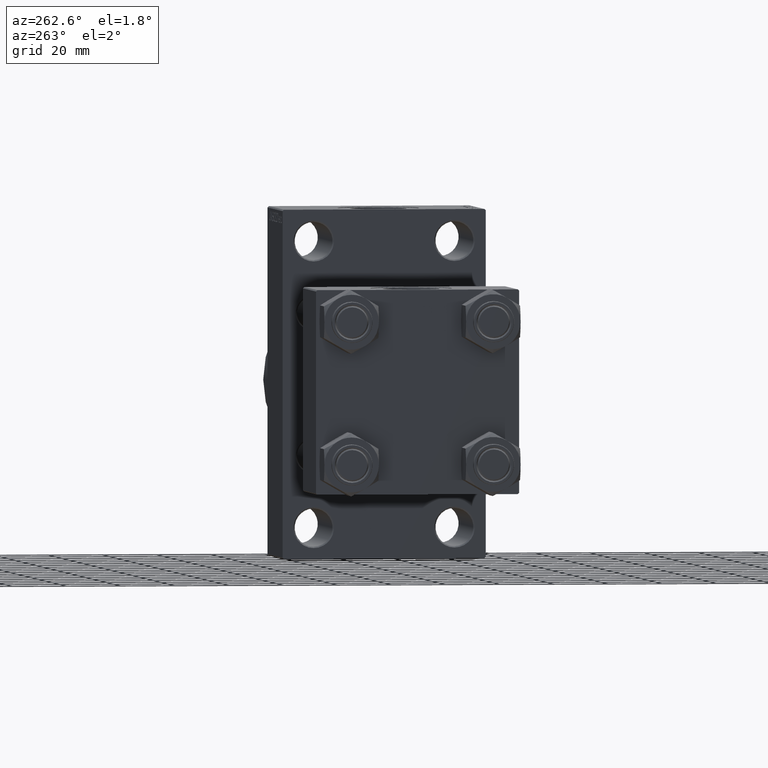
[diagram: clean part render]
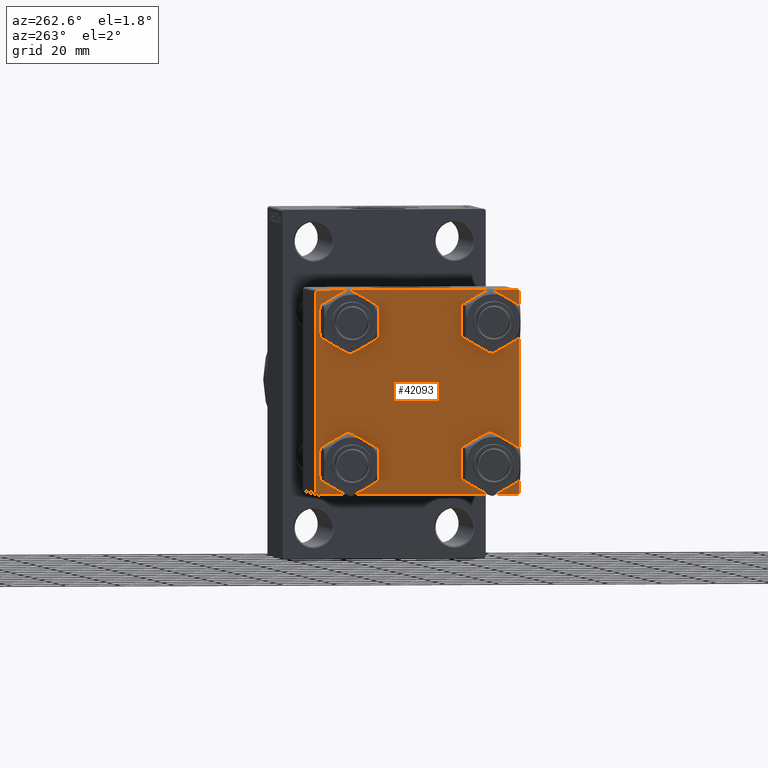
[diagram: same view with one face highlighted and labeled with its STEP entity id]
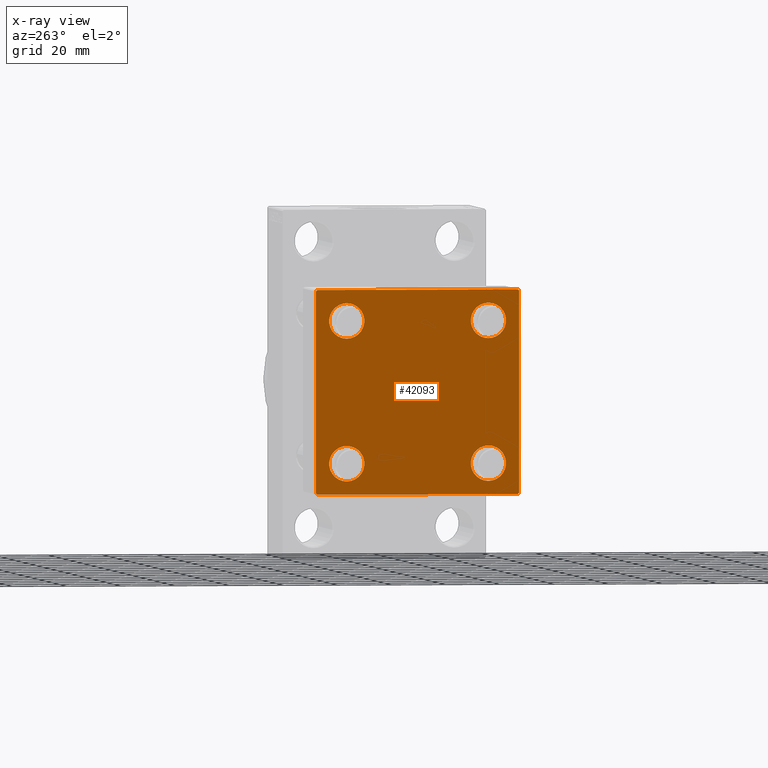
[diagram: x-ray of the same camera — body ghosted, the highlighted face saturated]
A machine part, auxiliary view. The second image highlights one B-rep face of the part: STEP entity #42093.
The next image is the same camera in x-ray: the body ghosted, the highlighted face saturated — about 0% of this face is hidden behind the body in this view.
In plain terms, the highlighted planar face has unit normal (-1, 0, 0).
Its self-contained STEP definition (entity closure, byte-faithful):
#1180 = CARTESIAN_POINT ( 'NONE',  ( 0.000000000000000000, 37.49999999999999289, -37.50000000000000000 ) ) ;
#1281 = AXIS2_PLACEMENT_3D ( 'NONE', #24222, #2528, #2296 ) ;
#1365 = DIRECTION ( 'NONE',  ( 0.000000000000000000, 9.251858538542971581E-17, -1.000000000000000000 ) ) ;
#1562 = CARTESIAN_POINT ( 'NONE',  ( 0.000000000000000000, -26.14999999999999147, -32.65000000000002700 ) ) ;
#2109 = EDGE_LOOP ( 'NONE', ( #8782, #29983 ) ) ;
#2296 = DIRECTION ( 'NONE',  ( 0.000000000000000000, 0.000000000000000000, 1.000000000000000000 ) ) ;
#2483 = AXIS2_PLACEMENT_3D ( 'NONE', #26236, #22635, #41620 ) ;
#2511 = FACE_BOUND ( 'NONE', #2109, .T. ) ;
#2528 = DIRECTION ( 'NONE',  ( 1.000000000000000000, -0.000000000000000000, 0.000000000000000000 ) ) ;
#2606 = CARTESIAN_POINT ( 'NONE',  ( 0.000000000000000000, -26.14999999999999147, -19.64999999999999503 ) ) ;
#2992 = DIRECTION ( 'NONE',  ( -1.000000000000000000, 0.000000000000000000, -0.000000000000000000 ) ) ;
#3024 = CARTESIAN_POINT ( 'NONE',  ( 0.000000000000000000, -26.14999999999999147, 32.65000000000003411 ) ) ;
#3180 = AXIS2_PLACEMENT_3D ( 'NONE', #24338, #6028, #42853 ) ;
#3391 = DIRECTION ( 'NONE',  ( 1.000000000000000000, -0.000000000000000000, 0.000000000000000000 ) ) ;
#4045 = VERTEX_POINT ( 'NONE', #39156 ) ;
#4949 = CARTESIAN_POINT ( 'NONE',  ( 0.000000000000000000, 37.49999999999999289, 37.50000000000000000 ) ) ;
#5223 = VERTEX_POINT ( 'NONE', #3024 ) ;
#5686 = CARTESIAN_POINT ( 'NONE',  ( 0.000000000000000000, -37.50000000000000711, 37.49999999999999289 ) ) ;
#6028 = DIRECTION ( 'NONE',  ( 1.000000000000000000, -0.000000000000000000, 0.000000000000000000 ) ) ;
#6439 = CIRCLE ( 'NONE', #23404, 6.500000000000015987 ) ;
#6605 = DIRECTION ( 'NONE',  ( -0.000000000000000000, 0.000000000000000000, 1.000000000000000000 ) ) ;
#7012 = CARTESIAN_POINT ( 'NONE',  ( 0.000000000000000000, 26.14999999999999858, 19.64999999999998437 ) ) ;
#7580 = EDGE_CURVE ( 'NONE', #5223, #22318, #32241, .T. ) ;
#8782 = ORIENTED_EDGE ( 'NONE', *, *, #16224, .T. ) ;
#8989 = CARTESIAN_POINT ( 'NONE',  ( 0.000000000000000000, 26.14999999999999858, 32.65000000000002700 ) ) ;
#9444 = VERTEX_POINT ( 'NONE', #1562 ) ;
#9715 = DIRECTION ( 'NONE',  ( 0.000000000000000000, 0.000000000000000000, 1.000000000000000000 ) ) ;
#10572 = EDGE_LOOP ( 'NONE', ( #11862, #28097 ) ) ;
#11788 = VECTOR ( 'NONE', #20217, 1000.000000000000000 ) ;
#11853 = DIRECTION ( 'NONE',  ( 1.000000000000000000, -0.000000000000000000, 0.000000000000000000 ) ) ;
#11862 = ORIENTED_EDGE ( 'NONE', *, *, #41052, .T. ) ;
#12326 = ORIENTED_EDGE ( 'NONE', *, *, #46492, .T. ) ;
#12405 = VECTOR ( 'NONE', #1365, 1000.000000000000000 ) ;
#12463 = CARTESIAN_POINT ( 'NONE',  ( 0.000000000000000000, -26.14999999999999147, 19.64999999999999147 ) ) ;
#12493 = LINE ( 'NONE', #1180, #25883 ) ;
#12678 = LINE ( 'NONE', #5686, #12405 ) ;
#12714 = CARTESIAN_POINT ( 'NONE',  ( 0.000000000000000000, 37.24999999999999289, 37.24999999999999289 ) ) ;
#12933 = EDGE_CURVE ( 'NONE', #39030, #28708, #12678, .T. ) ;
#13176 = LINE ( 'NONE', #42539, #18032 ) ;
#13347 = EDGE_CURVE ( 'NONE', #36987, #9444, #18576, .T. ) ;
#13637 = ORIENTED_EDGE ( 'NONE', *, *, #27983, .T. ) ;
#13883 = ORIENTED_EDGE ( 'NONE', *, *, #24943, .T. ) ;
#13996 = CARTESIAN_POINT ( 'NONE',  ( 0.000000000000000000, -37.00000000000002132, -37.50000000000000711 ) ) ;
#14687 = EDGE_LOOP ( 'NONE', ( #34593, #39323 ) ) ;
#15455 = CARTESIAN_POINT ( 'NONE',  ( 0.000000000000000000, -26.14999999999999147, 26.15000000000000924 ) ) ;
#15859 = DIRECTION ( 'NONE',  ( 0.000000000000000000, -1.000000000000000000, -9.251858538542972814E-17 ) ) ;
#16121 = LINE ( 'NONE', #43065, #11788 ) ;
#16224 = EDGE_CURVE ( 'NONE', #45969, #21794, #16350, .T. ) ;
#16350 = CIRCLE ( 'NONE', #3180, 6.500000000000023093 ) ;
#16952 = VERTEX_POINT ( 'NONE', #31085 ) ;
#17684 = DIRECTION ( 'NONE',  ( 1.000000000000000000, -0.000000000000000000, 0.000000000000000000 ) ) ;
#18032 = VECTOR ( 'NONE', #27864, 1000.000000000000114 ) ;
#18576 = CIRCLE ( 'NONE', #45463, 6.500000000000015987 ) ;
#18881 = CARTESIAN_POINT ( 'NONE',  ( 0.000000000000000000, 26.14999999999999858, -26.15000000000000213 ) ) ;
#19036 = CARTESIAN_POINT ( 'NONE',  ( 0.000000000000000000, -37.50000000000000711, 36.99999999999999289 ) ) ;
#19118 = ORIENTED_EDGE ( 'NONE', *, *, #13347, .T. ) ;
#19557 = DIRECTION ( 'NONE',  ( 0.000000000000000000, 0.000000000000000000, 1.000000000000000000 ) ) ;
#19583 = DIRECTION ( 'NONE',  ( 1.000000000000000000, -0.000000000000000000, 0.000000000000000000 ) ) ;
#19643 = DIRECTION ( 'NONE',  ( 0.000000000000000000, 0.000000000000000000, -1.000000000000000000 ) ) ;
#19795 = EDGE_CURVE ( 'NONE', #21794, #45969, #43256, .T. ) ;
#20217 = DIRECTION ( 'NONE',  ( 0.000000000000000000, -0.7071067811865524577, 0.7071067811865426878 ) ) ;
#20501 = CIRCLE ( 'NONE', #1281, 6.500000000000015987 ) ;
#20564 = CARTESIAN_POINT ( 'NONE',  ( 0.000000000000000000, -26.14999999999999147, -26.15000000000000924 ) ) ;
#20591 = FACE_OUTER_BOUND ( 'NONE', #41417, .T. ) ;
#21055 = EDGE_CURVE ( 'NONE', #32859, #28708, #16121, .T. ) ;
#21494 = CARTESIAN_POINT ( 'NONE',  ( 0.000000000000000000, 37.49999999999999289, 37.50000000000000000 ) ) ;
#21794 = VERTEX_POINT ( 'NONE', #7012 ) ;
#22264 = VERTEX_POINT ( 'NONE', #37274 ) ;
#22318 = VERTEX_POINT ( 'NONE', #12463 ) ;
#22635 = DIRECTION ( 'NONE',  ( 1.000000000000000000, -0.000000000000000000, 0.000000000000000000 ) ) ;
#22834 = EDGE_CURVE ( 'NONE', #4045, #22264, #6439, .T. ) ;
#23404 = AXIS2_PLACEMENT_3D ( 'NONE', #28743, #17684, #32122 ) ;
#23748 = CARTESIAN_POINT ( 'NONE',  ( 0.000000000000000000, 36.99999999999997868, -37.50000000000000000 ) ) ;
#24222 = CARTESIAN_POINT ( 'NONE',  ( 0.000000000000000000, -26.14999999999999147, -26.15000000000000924 ) ) ;
#24338 = CARTESIAN_POINT ( 'NONE',  ( 0.000000000000000000, 26.14999999999999858, 26.15000000000000213 ) ) ;
#24441 = FACE_BOUND ( 'NONE', #14687, .T. ) ;
#24943 = EDGE_CURVE ( 'NONE', #16952, #38504, #34306, .T. ) ;
#25883 = VECTOR ( 'NONE', #15859, 1000.000000000000000 ) ;
#26152 = EDGE_CURVE ( 'NONE', #39239, #30865, #31840, .T. ) ;
#26236 = CARTESIAN_POINT ( 'NONE',  ( 0.000000000000000000, 26.14999999999999858, 26.15000000000000213 ) ) ;
#26249 = DIRECTION ( 'NONE',  ( -0.000000000000000000, -0.7071067811865474617, -0.7071067811865474617 ) ) ;
#26403 = DIRECTION ( 'NONE',  ( 0.000000000000000000, 0.000000000000000000, 1.000000000000000000 ) ) ;
#26809 = ORIENTED_EDGE ( 'NONE', *, *, #38226, .T. ) ;
#27187 = CARTESIAN_POINT ( 'NONE',  ( 0.000000000000000000, -37.50000000000000000, -37.00000000000003553 ) ) ;
#27407 = DIRECTION ( 'NONE',  ( 0.000000000000000000, 0.7071067811865474617, -0.7071067811865474617 ) ) ;
#27506 = CIRCLE ( 'NONE', #33663, 6.500000000000015987 ) ;
#27864 = DIRECTION ( 'NONE',  ( -0.000000000000000000, 0.7071067811865474617, 0.7071067811865474617 ) ) ;
#27983 = EDGE_CURVE ( 'NONE', #38254, #32859, #12493, .T. ) ;
#28097 = ORIENTED_EDGE ( 'NONE', *, *, #22834, .T. ) ;
#28519 = CARTESIAN_POINT ( 'NONE',  ( 0.000000000000000000, 0.000000000000000000, 0.000000000000000000 ) ) ;
#28708 = VERTEX_POINT ( 'NONE', #27187 ) ;
#28743 = CARTESIAN_POINT ( 'NONE',  ( 0.000000000000000000, 26.14999999999999858, -26.15000000000000213 ) ) ;
#28927 = EDGE_CURVE ( 'NONE', #22318, #5223, #39747, .T. ) ;
#29776 = CARTESIAN_POINT ( 'NONE',  ( 0.000000000000000000, -26.14999999999999147, 26.15000000000000924 ) ) ;
#29983 = ORIENTED_EDGE ( 'NONE', *, *, #19795, .T. ) ;
#30865 = VERTEX_POINT ( 'NONE', #33255 ) ;
#31085 = CARTESIAN_POINT ( 'NONE',  ( 0.000000000000000000, 37.49999999999999289, 37.00000000000000000 ) ) ;
#31600 = DIRECTION ( 'NONE',  ( 0.000000000000000000, -1.000000000000000000, -9.251858538542971581E-17 ) ) ;
#31840 = LINE ( 'NONE', #21494, #44257 ) ;
#32122 = DIRECTION ( 'NONE',  ( 0.000000000000000000, 0.000000000000000000, 1.000000000000000000 ) ) ;
#32241 = CIRCLE ( 'NONE', #47589, 6.500000000000023093 ) ;
#32859 = VERTEX_POINT ( 'NONE', #13996 ) ;
#33255 = CARTESIAN_POINT ( 'NONE',  ( 0.000000000000000000, -37.00000000000000711, 37.49999999999999289 ) ) ;
#33339 = EDGE_CURVE ( 'NONE', #39030, #30865, #13176, .T. ) ;
#33389 = DIRECTION ( 'NONE',  ( 1.000000000000000000, -0.000000000000000000, 0.000000000000000000 ) ) ;
#33663 = AXIS2_PLACEMENT_3D ( 'NONE', #18881, #19583, #37398 ) ;
#34306 = LINE ( 'NONE', #4949, #38815 ) ;
#34431 = EDGE_CURVE ( 'NONE', #39239, #16952, #34843, .T. ) ;
#34593 = ORIENTED_EDGE ( 'NONE', *, *, #7580, .T. ) ;
#34764 = ORIENTED_EDGE ( 'NONE', *, *, #12933, .F. ) ;
#34843 = LINE ( 'NONE', #12714, #45716 ) ;
#34902 = ORIENTED_EDGE ( 'NONE', *, *, #21055, .T. ) ;
#35252 = PLANE ( 'NONE',  #45195 ) ;
#36774 = VECTOR ( 'NONE', #26249, 1000.000000000000114 ) ;
#36887 = ORIENTED_EDGE ( 'NONE', *, *, #34431, .T. ) ;
#36987 = VERTEX_POINT ( 'NONE', #2606 ) ;
#37274 = CARTESIAN_POINT ( 'NONE',  ( 0.000000000000000000, 26.14999999999999858, -19.64999999999998792 ) ) ;
#37398 = DIRECTION ( 'NONE',  ( 0.000000000000000000, 0.000000000000000000, 1.000000000000000000 ) ) ;
#37547 = CARTESIAN_POINT ( 'NONE',  ( 0.000000000000000000, 37.24999999999998579, -37.24999999999998579 ) ) ;
#38226 = EDGE_CURVE ( 'NONE', #9444, #36987, #20501, .T. ) ;
#38254 = VERTEX_POINT ( 'NONE', #23748 ) ;
#38504 = VERTEX_POINT ( 'NONE', #40804 ) ;
#38815 = VECTOR ( 'NONE', #19643, 1000.000000000000000 ) ;
#39030 = VERTEX_POINT ( 'NONE', #19036 ) ;
#39110 = FACE_BOUND ( 'NONE', #40466, .T. ) ;
#39156 = CARTESIAN_POINT ( 'NONE',  ( 0.000000000000000000, 26.14999999999999858, -32.65000000000001990 ) ) ;
#39239 = VERTEX_POINT ( 'NONE', #39850 ) ;
#39323 = ORIENTED_EDGE ( 'NONE', *, *, #28927, .T. ) ;
#39509 = ORIENTED_EDGE ( 'NONE', *, *, #33339, .T. ) ;
#39747 = CIRCLE ( 'NONE', #47411, 6.500000000000023093 ) ;
#39850 = CARTESIAN_POINT ( 'NONE',  ( 0.000000000000000000, 36.99999999999999289, 37.50000000000000000 ) ) ;
#40466 = EDGE_LOOP ( 'NONE', ( #19118, #26809 ) ) ;
#40804 = CARTESIAN_POINT ( 'NONE',  ( 0.000000000000000000, 37.49999999999999289, -36.99999999999998579 ) ) ;
#41052 = EDGE_CURVE ( 'NONE', #22264, #4045, #27506, .T. ) ;
#41417 = EDGE_LOOP ( 'NONE', ( #13883, #12326, #13637, #34902, #34764, #39509, #43618, #36887 ) ) ;
#41620 = DIRECTION ( 'NONE',  ( 0.000000000000000000, 0.000000000000000000, 1.000000000000000000 ) ) ;
#41635 = LINE ( 'NONE', #37547, #36774 ) ;
#42093 = ADVANCED_FACE ( 'NONE', ( #24441, #39110, #42483, #2511, #20591 ), #35252, .T. ) ;
#42483 = FACE_BOUND ( 'NONE', #10572, .T. ) ;
#42539 = CARTESIAN_POINT ( 'NONE',  ( -0.000000000000000000, -37.25000000000000000, 37.25000000000000000 ) ) ;
#42853 = DIRECTION ( 'NONE',  ( 0.000000000000000000, 0.000000000000000000, 1.000000000000000000 ) ) ;
#43065 = CARTESIAN_POINT ( 'NONE',  ( 0.000000000000000000, -37.24999999999975842, -37.25000000000027001 ) ) ;
#43256 = CIRCLE ( 'NONE', #2483, 6.500000000000023093 ) ;
#43618 = ORIENTED_EDGE ( 'NONE', *, *, #26152, .F. ) ;
#44257 = VECTOR ( 'NONE', #31600, 1000.000000000000000 ) ;
#45195 = AXIS2_PLACEMENT_3D ( 'NONE', #28519, #2992, #6605 ) ;
#45463 = AXIS2_PLACEMENT_3D ( 'NONE', #20564, #3391, #9715 ) ;
#45716 = VECTOR ( 'NONE', #27407, 1000.000000000000114 ) ;
#45969 = VERTEX_POINT ( 'NONE', #8989 ) ;
#46492 = EDGE_CURVE ( 'NONE', #38504, #38254, #41635, .T. ) ;
#47411 = AXIS2_PLACEMENT_3D ( 'NONE', #29776, #33389, #26403 ) ;
#47589 = AXIS2_PLACEMENT_3D ( 'NONE', #15455, #11853, #19557 ) ;